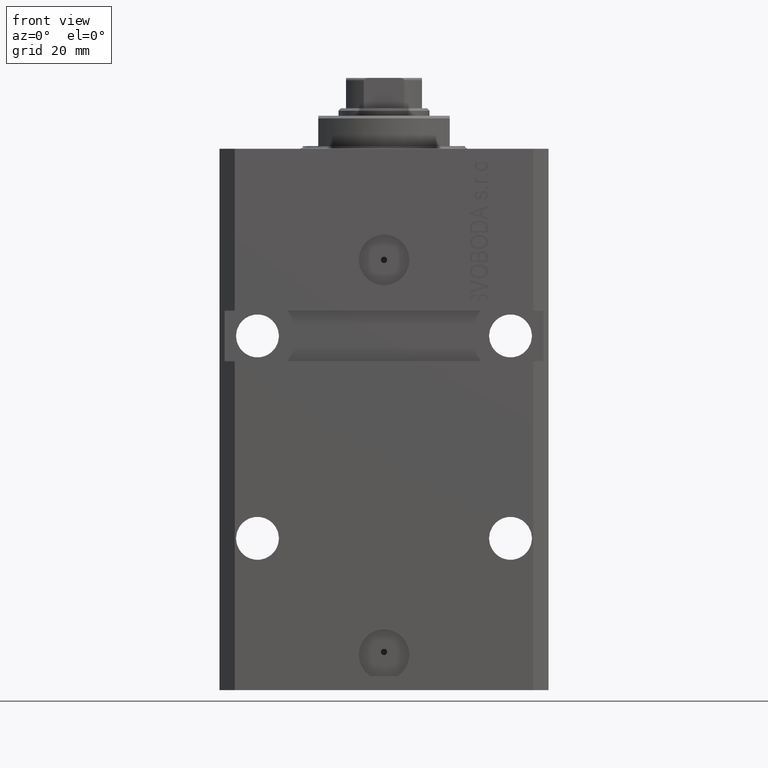
[diagram: clean part render]
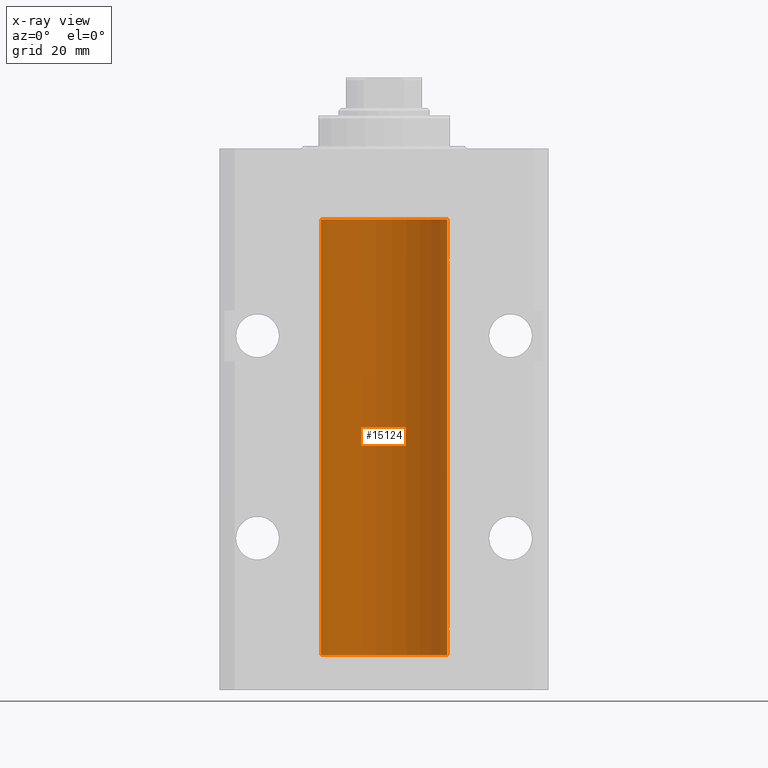
[diagram: x-ray — body ghosted, one internal face saturated and labeled with its STEP entity id]
A machine part, front view, then the same camera in x-ray: the body is ghosted and one INTERNAL B-rep face — a face not visible from any outside direction — is saturated and labeled: STEP entity #15124.
In plain terms, the highlighted cylindrical surface (partial cylindrical patch) has radius 12.5 mm, axis along (0, 0, 1).
Its self-contained STEP definition (entity closure, byte-faithful):
#108 = CARTESIAN_POINT ( 'NONE',  ( 12.48436522214846711, 0.6250000000078848039, -94.99999999999923261 ) ) ;
#158 = CARTESIAN_POINT ( 'NONE',  ( -12.49631005746706514, 0.3253680783018457756, -95.55856740465388555 ) ) ;
#183 = CARTESIAN_POINT ( 'NONE',  ( -12.50000000000000000, 1.530808498934191521E-15, -100.0999999999999943 ) ) ;
#340 = ORIENTED_EDGE ( 'NONE', *, *, #43353, .T. ) ;
#391 = CARTESIAN_POINT ( 'NONE',  ( -12.50000000000017941, 3.883381774819353300E-13, -95.62500000000359535 ) ) ;
#770 = CARTESIAN_POINT ( 'NONE',  ( 12.49625698805480667, 0.3151108292486967666, -22.54593695688170385 ) ) ;
#860 = CARTESIAN_POINT ( 'NONE',  ( -12.49422197749723829, 0.3843754434364257122, -94.50047099568094211 ) ) ;
#1090 = EDGE_CURVE ( 'NONE', #28588, #25165, #44133, .T. ) ;
#1183 = LINE ( 'NONE', #23003, #45506 ) ;
#2251 = CARTESIAN_POINT ( 'NONE',  ( 12.49999999999999112, 0.1631389616600879555, -21.37500000000019185 ) ) ;
#2462 = DIRECTION ( 'NONE',  ( -0.000000000000000000, -0.000000000000000000, 1.000000000000000000 ) ) ;
#2658 = CARTESIAN_POINT ( 'NONE',  ( -12.50000000000000000, 1.530808498934191521E-15, -100.0999999999999943 ) ) ;
#3132 = AXIS2_PLACEMENT_3D ( 'NONE', #5444, #12132, #11692 ) ;
#3618 = CARTESIAN_POINT ( 'NONE',  ( -12.49915784441387068, 0.1636601911727894876, -94.39126818989429069 ) ) ;
#3622 = CARTESIAN_POINT ( 'NONE',  ( 12.49012055744648997, 0.5002956126656082914, -94.61641710202405875 ) ) ;
#4410 = DIRECTION ( 'NONE',  ( 0.000000000000000000, 0.000000000000000000, 1.000000000000000000 ) ) ;
#4554 = LINE ( 'NONE', #22042, #8207 ) ;
#4780 = CARTESIAN_POINT ( 'NONE',  ( 12.49012055744648997, 0.5002956126655976332, -21.61641710202404454 ) ) ;
#5168 = VERTEX_POINT ( 'NONE', #25268 ) ;
#5444 = CARTESIAN_POINT ( 'NONE',  ( 0.000000000000000000, 0.000000000000000000, -100.0999999999999943 ) ) ;
#5829 = VECTOR ( 'NONE', #37147, 1000.000000000000000 ) ;
#5906 = CARTESIAN_POINT ( 'NONE',  ( -12.50000000000000000, 1.530808498934191521E-15, -100.0999999999999943 ) ) ;
#6539 = AXIS2_PLACEMENT_3D ( 'NONE', #33740, #19257, #29612 ) ;
#6620 = CARTESIAN_POINT ( 'NONE',  ( 12.50000000000017941, 3.868073689162038701E-13, -94.37499999999640465 ) ) ;
#6635 = VECTOR ( 'NONE', #7211, 1000.000000000000000 ) ;
#6776 = CARTESIAN_POINT ( 'NONE',  ( 12.50000000000000000, 0.000000000000000000, -100.0999999999999943 ) ) ;
#7211 = DIRECTION ( 'NONE',  ( -0.000000000000000000, -0.000000000000000000, 1.000000000000000000 ) ) ;
#7779 = CARTESIAN_POINT ( 'NONE',  ( 12.48810305280568222, 0.5461368461738448365, -21.68525466142676805 ) ) ;
#7816 = EDGE_LOOP ( 'NONE', ( #38718, #24294, #11854, #26804, #23109, #340, #17808, #21239, #41978, #33317, #17869, #42160, #27499, #22313 ) ) ;
#7886 = CARTESIAN_POINT ( 'NONE',  ( 12.48436522214846889, 0.6250000000078781426, -21.99999999999923261 ) ) ;
#8207 = VECTOR ( 'NONE', #8215, 1000.000000000000000 ) ;
#8215 = DIRECTION ( 'NONE',  ( -0.000000000000000000, -0.000000000000000000, 1.000000000000000000 ) ) ;
#8347 = VERTEX_POINT ( 'NONE', #35447 ) ;
#8799 = CARTESIAN_POINT ( 'NONE',  ( -12.50000000000000000, 1.530808498934191521E-15, -13.99999999999999822 ) ) ;
#8968 = CARTESIAN_POINT ( 'NONE',  ( -12.50000000000000000, -2.089494013101375120E-17, -21.37499999999999645 ) ) ;
#9120 = CYLINDRICAL_SURFACE ( 'NONE', #6539, 12.50000000000000000 ) ;
#9696 = VECTOR ( 'NONE', #2462, 1000.000000000000000 ) ;
#9799 = VERTEX_POINT ( 'NONE', #22507 ) ;
#9849 = CARTESIAN_POINT ( 'NONE',  ( 12.48520578595314845, 0.6087855079133740466, -94.83656717509346379 ) ) ;
#10077 = CARTESIAN_POINT ( 'NONE',  ( 12.49631206032076136, 0.3252904079142934779, -94.44139700214928723 ) ) ;
#10300 = CARTESIAN_POINT ( 'NONE',  ( 12.48810305280568222, 0.5461368461738485003, -94.68525466142676805 ) ) ;
#10751 = CARTESIAN_POINT ( 'NONE',  ( -12.50000000000000000, 0.08260426088727994276, -94.37499999999998579 ) ) ;
#10909 = CARTESIAN_POINT ( 'NONE',  ( -12.50000000000000000, 1.530808498934191521E-15, -100.0999999999999943 ) ) ;
#10986 = CARTESIAN_POINT ( 'NONE',  ( -12.48809959379011403, 0.5462151254764922026, -95.31461370481613926 ) ) ;
#11251 = CARTESIAN_POINT ( 'NONE',  ( 12.48436522214846889, 0.6250000000078781426, -21.99999999999923261 ) ) ;
#11594 = LINE ( 'NONE', #42400, #6635 ) ;
#11692 = DIRECTION ( 'NONE',  ( 1.000000000000000000, 0.000000000000000000, 0.000000000000000000 ) ) ;
#11854 = ORIENTED_EDGE ( 'NONE', *, *, #35568, .T. ) ;
#11985 = CARTESIAN_POINT ( 'NONE',  ( -12.48436376893640443, 0.6250290278979917513, -22.08132082824473486 ) ) ;
#12132 = DIRECTION ( 'NONE',  ( 0.000000000000000000, 0.000000000000000000, 1.000000000000000000 ) ) ;
#12422 = CARTESIAN_POINT ( 'NONE',  ( 12.50000000000017941, 3.868073689162038701E-13, -94.37499999999640465 ) ) ;
#12669 = CARTESIAN_POINT ( 'NONE',  ( -12.49011732893843529, 0.5003763274120274218, -22.38348111289287701 ) ) ;
#13119 = B_SPLINE_CURVE_WITH_KNOTS ( 'NONE', 3,
 ( #21111, #10751, #3618, #18120, #860, #32143, #39263, #17666, #25021, #10986, #28016, #158, #42707, #391 ),
 .UNSPECIFIED., .F., .F.,
 ( 4, 2, 2, 2, 2, 2, 4 ),
 ( 3.486178718436696769E-18, 0.0002442924852390829216, 0.0004885849704781623738, 0.0009771699409563507684, 0.001221462426195465403, 0.001465754911434580254, 0.001954339881912780900 ),
 .UNSPECIFIED. ) ;
#13325 = EDGE_CURVE ( 'NONE', #5168, #15850, #37303, .T. ) ;
#13720 = CARTESIAN_POINT ( 'NONE',  ( 12.49421963472024721, 0.3844519291903572555, -95.49947303647047647 ) ) ;
#14233 = DIRECTION ( 'NONE',  ( -0.000000000000000000, -0.000000000000000000, 1.000000000000000000 ) ) ;
#14632 = CARTESIAN_POINT ( 'NONE',  ( 12.48436522214885969, 0.6250000000001505462, -95.16312747540308692 ) ) ;
#14720 = CARTESIAN_POINT ( 'NONE',  ( -12.50000000000000000, -2.089494013101375120E-17, -21.37499999999999645 ) ) ;
#15034 = CARTESIAN_POINT ( 'NONE',  ( 12.48809900631782099, 0.5573988467445639694, -22.32640147935474317 ) ) ;
#15124 = ADVANCED_FACE ( 'NONE', ( #26396 ), #9120, .F. ) ;
#15850 = VERTEX_POINT ( 'NONE', #108 ) ;
#17666 = CARTESIAN_POINT ( 'NONE',  ( -12.48436376893640620, 0.6250290278979871994, -95.08132082824478459 ) ) ;
#17808 = ORIENTED_EDGE ( 'NONE', *, *, #43574, .T. ) ;
#17847 = CARTESIAN_POINT ( 'NONE',  ( 12.49915742890631876, 0.1636982395582385896, -95.60872397847028026 ) ) ;
#17869 = ORIENTED_EDGE ( 'NONE', *, *, #31133, .F. ) ;
#18030 = CARTESIAN_POINT ( 'NONE',  ( 12.50000000000000000, -1.470318446642941360E-15, -22.62500000000000000 ) ) ;
#18120 = CARTESIAN_POINT ( 'NONE',  ( -12.49625855304194033, 0.3150454781037993479, -94.45402800297488000 ) ) ;
#18674 = VERTEX_POINT ( 'NONE', #8799 ) ;
#19103 = DIRECTION ( 'NONE',  ( -0.000000000000000000, -0.000000000000000000, 1.000000000000000000 ) ) ;
#19112 = CARTESIAN_POINT ( 'NONE',  ( -12.48436813453758454, 0.6249418250771192618, -21.83668996798922635 ) ) ;
#19257 = DIRECTION ( 'NONE',  ( -0.000000000000000000, -0.000000000000000000, 1.000000000000000000 ) ) ;
#21111 = CARTESIAN_POINT ( 'NONE',  ( -12.50000000000000000, -1.522152011595579853E-14, -94.37500000000000000 ) ) ;
#21239 = ORIENTED_EDGE ( 'NONE', *, *, #1090, .T. ) ;
#21249 = LINE ( 'NONE', #5906, #9696 ) ;
#21481 = CARTESIAN_POINT ( 'NONE',  ( 12.48436522214885969, 0.6250000000001448841, -22.16312747540307271 ) ) ;
#21834 = CARTESIAN_POINT ( 'NONE',  ( 12.49631206032075958, 0.3252904079142808214, -21.44139700214925526 ) ) ;
#22043 = EDGE_CURVE ( 'NONE', #15850, #34777, #45403, .T. ) ;
#22042 = CARTESIAN_POINT ( 'NONE',  ( 12.50000000000000000, 0.000000000000000000, -100.0999999999999943 ) ) ;
#22313 = ORIENTED_EDGE ( 'NONE', *, *, #39692, .T. ) ;
#22340 = CARTESIAN_POINT ( 'NONE',  ( -12.49915784441386890, 0.1636601911727947889, -21.39126818989430490 ) ) ;
#22507 = CARTESIAN_POINT ( 'NONE',  ( -12.50000000000017941, 3.883381774819353300E-13, -95.62500000000359535 ) ) ;
#22944 = CARTESIAN_POINT ( 'NONE',  ( 12.50000000000017941, 3.868073565084946818E-13, -21.37499999999641176 ) ) ;
#23003 = CARTESIAN_POINT ( 'NONE',  ( 12.50000000000000000, 0.000000000000000000, -100.0999999999999943 ) ) ;
#23011 = CARTESIAN_POINT ( 'NONE',  ( -12.49422197749724006, 0.3843754434364375916, -21.50047099568095277 ) ) ;
#23109 = ORIENTED_EDGE ( 'NONE', *, *, #22043, .T. ) ;
#23962 = CIRCLE ( 'NONE', #32790, 12.50000000000000000 ) ;
#24070 = CARTESIAN_POINT ( 'NONE',  ( 12.48809900631782099, 0.5573988467445673001, -95.32640147935475738 ) ) ;
#24115 = CARTESIAN_POINT ( 'NONE',  ( 12.49999999999999822, 0.1631389616600901760, -94.37500000000024158 ) ) ;
#24294 = ORIENTED_EDGE ( 'NONE', *, *, #44302, .F. ) ;
#24568 = EDGE_CURVE ( 'NONE', #27970, #18674, #23962, .T. ) ;
#24932 = CARTESIAN_POINT ( 'NONE',  ( 12.49915742890631876, 0.1636982395582437522, -22.60872397847025539 ) ) ;
#25021 = CARTESIAN_POINT ( 'NONE',  ( -12.48520330846397997, 0.6088355886774070580, -95.16325431852561678 ) ) ;
#25165 = VERTEX_POINT ( 'NONE', #30211 ) ;
#25268 = CARTESIAN_POINT ( 'NONE',  ( 12.50000000000000000, -1.836039810331332019E-15, -95.62500000000000000 ) ) ;
#25286 = CARTESIAN_POINT ( 'NONE',  ( 12.48436522214888100, 0.6249999999996762590, -21.91847339462350774 ) ) ;
#25808 = CARTESIAN_POINT ( 'NONE',  ( -12.50000000000017941, 3.883381646606358354E-13, -22.62500000000358824 ) ) ;
#26396 = FACE_OUTER_BOUND ( 'NONE', #7816, .T. ) ;
#26510 = CARTESIAN_POINT ( 'NONE',  ( -12.50000000000017941, 3.883381646606358354E-13, -22.62500000000358824 ) ) ;
#26790 = VERTEX_POINT ( 'NONE', #26510 ) ;
#26804 = ORIENTED_EDGE ( 'NONE', *, *, #13325, .T. ) ;
#27053 = LINE ( 'NONE', #2658, #5829 ) ;
#27499 = ORIENTED_EDGE ( 'NONE', *, *, #43498, .F. ) ;
#27970 = VERTEX_POINT ( 'NONE', #34030 ) ;
#28009 = CARTESIAN_POINT ( 'NONE',  ( 12.50000000000000000, -1.470318446642941360E-15, -22.62500000000000000 ) ) ;
#28016 = CARTESIAN_POINT ( 'NONE',  ( -12.49011732893843529, 0.5003763274120199833, -95.38348111289285214 ) ) ;
#28588 = VERTEX_POINT ( 'NONE', #36457 ) ;
#28711 = VERTEX_POINT ( 'NONE', #10909 ) ;
#29251 = CARTESIAN_POINT ( 'NONE',  ( -12.48810268015257563, 0.5573155909661349217, -21.67347410093867666 ) ) ;
#29469 = DIRECTION ( 'NONE',  ( 1.000000000000000000, 0.000000000000000000, 0.000000000000000000 ) ) ;
#29612 = DIRECTION ( 'NONE',  ( 1.000000000000000000, 0.000000000000000000, 0.000000000000000000 ) ) ;
#29686 = CARTESIAN_POINT ( 'NONE',  ( -12.48809959379011403, 0.5462151254764975317, -22.31461370481611795 ) ) ;
#30150 = CARTESIAN_POINT ( 'NONE',  ( -12.50000000000000000, 0.08260426088729219685, -21.37500000000000000 ) ) ;
#30211 = CARTESIAN_POINT ( 'NONE',  ( 12.50000000000017941, 3.868073565084946818E-13, -21.37499999999641176 ) ) ;
#30989 = B_SPLINE_CURVE_WITH_KNOTS ( 'NONE', 3,
 ( #18030, #36393, #24932, #770, #39409, #15034, #21481, #7886 ),
 .UNSPECIFIED., .F., .F.,
 ( 4, 2, 2, 4 ),
 ( 2.576359803311334014E-18, 0.0002443481056285645150, 0.0004886962112571264279, 0.0009773924225142506875 ),
 .UNSPECIFIED. ) ;
#31133 = EDGE_CURVE ( 'NONE', #38688, #18674, #34696, .T. ) ;
#32143 = CARTESIAN_POINT ( 'NONE',  ( -12.48810268015257741, 0.5573155909661239304, -94.67347410093871929 ) ) ;
#32691 = CARTESIAN_POINT ( 'NONE',  ( 0.000000000000000000, 0.000000000000000000, -13.99999999999999822 ) ) ;
#32790 = AXIS2_PLACEMENT_3D ( 'NONE', #32691, #4410, #29469 ) ;
#33081 = EDGE_CURVE ( 'NONE', #28711, #9799, #27053, .T. ) ;
#33317 = ORIENTED_EDGE ( 'NONE', *, *, #24568, .T. ) ;
#33740 = CARTESIAN_POINT ( 'NONE',  ( 0.000000000000000000, 0.000000000000000000, -100.0999999999999943 ) ) ;
#33973 = VERTEX_POINT ( 'NONE', #6776 ) ;
#34030 = CARTESIAN_POINT ( 'NONE',  ( 12.50000000000000000, 0.000000000000000000, -13.99999999999999822 ) ) ;
#34696 = LINE ( 'NONE', #183, #41733 ) ;
#34777 = VERTEX_POINT ( 'NONE', #12422 ) ;
#35126 = CARTESIAN_POINT ( 'NONE',  ( 12.48436522214888100, 0.6249999999996834754, -94.91847339462351840 ) ) ;
#35447 = CARTESIAN_POINT ( 'NONE',  ( -12.50000000000000000, -1.522152011595579853E-14, -94.37500000000000000 ) ) ;
#35533 = CARTESIAN_POINT ( 'NONE',  ( 12.48436522214846711, 0.6250000000078848039, -94.99999999999923261 ) ) ;
#35568 = EDGE_CURVE ( 'NONE', #33973, #5168, #11594, .T. ) ;
#36393 = CARTESIAN_POINT ( 'NONE',  ( 12.49999999999999822, 0.08262306818362555316, -22.62499999999997513 ) ) ;
#36457 = CARTESIAN_POINT ( 'NONE',  ( 12.48436522214846889, 0.6250000000078781426, -21.99999999999923261 ) ) ;
#36801 = B_SPLINE_CURVE_WITH_KNOTS ( 'NONE', 3,
 ( #8968, #30150, #22340, #44162, #23011, #29251, #19112, #11985, #43264, #29686, #12669, #43696, #39596, #25808 ),
 .UNSPECIFIED., .F., .F.,
 ( 4, 2, 2, 2, 2, 2, 4 ),
 ( 2.030551168097110502E-20, 0.0002442924852390969078, 0.0004885849704781938157, 0.0009771699409563880650, 0.001221462426195485135, 0.001465754911434582423, 0.001954339881912776130 ),
 .UNSPECIFIED. ) ;
#37147 = DIRECTION ( 'NONE',  ( -0.000000000000000000, -0.000000000000000000, 1.000000000000000000 ) ) ;
#37303 = B_SPLINE_CURVE_WITH_KNOTS ( 'NONE', 3,
 ( #38539, #38765, #17847, #38316, #13720, #24070, #14632, #35533 ),
 .UNSPECIFIED., .F., .F.,
 ( 4, 2, 2, 4 ),
 ( 1.784246692340212412E-18, 0.0002443481056285665750, 0.0004886962112571313068, 0.0009773924225142606621 ),
 .UNSPECIFIED. ) ;
#37672 = EDGE_CURVE ( 'NONE', #25165, #27970, #1183, .T. ) ;
#38316 = CARTESIAN_POINT ( 'NONE',  ( 12.49625698805481022, 0.3151108292486944906, -95.54593695688171806 ) ) ;
#38385 = EDGE_CURVE ( 'NONE', #38688, #26790, #36801, .T. ) ;
#38539 = CARTESIAN_POINT ( 'NONE',  ( 12.50000000000000000, -1.836039810331332019E-15, -95.62500000000000000 ) ) ;
#38688 = VERTEX_POINT ( 'NONE', #14720 ) ;
#38718 = ORIENTED_EDGE ( 'NONE', *, *, #33081, .F. ) ;
#38765 = CARTESIAN_POINT ( 'NONE',  ( 12.49999999999999822, 0.08262306818362624705, -95.62499999999998579 ) ) ;
#38818 = VERTEX_POINT ( 'NONE', #28009 ) ;
#39112 = CIRCLE ( 'NONE', #3132, 12.50000000000000000 ) ;
#39263 = CARTESIAN_POINT ( 'NONE',  ( -12.48436813453758631, 0.6249418250771134886, -94.83668996798924411 ) ) ;
#39302 = CARTESIAN_POINT ( 'NONE',  ( 12.48520578595314845, 0.6087855079133684955, -21.83656717509346024 ) ) ;
#39409 = CARTESIAN_POINT ( 'NONE',  ( 12.49421963472024366, 0.3844519291903583103, -22.49947303647044805 ) ) ;
#39596 = CARTESIAN_POINT ( 'NONE',  ( -12.49999999999999289, 0.1631761135151241215, -22.62499999999984013 ) ) ;
#39692 = EDGE_CURVE ( 'NONE', #8347, #9799, #13119, .T. ) ;
#41352 = CARTESIAN_POINT ( 'NONE',  ( 12.48436522214846711, 0.6250000000078848039, -94.99999999999923261 ) ) ;
#41733 = VECTOR ( 'NONE', #14233, 1000.000000000000000 ) ;
#41978 = ORIENTED_EDGE ( 'NONE', *, *, #37672, .T. ) ;
#42160 = ORIENTED_EDGE ( 'NONE', *, *, #38385, .T. ) ;
#42400 = CARTESIAN_POINT ( 'NONE',  ( 12.50000000000000000, 0.000000000000000000, -100.0999999999999943 ) ) ;
#42707 = CARTESIAN_POINT ( 'NONE',  ( -12.49999999999999112, 0.1631761135151224562, -95.62499999999980105 ) ) ;
#43264 = CARTESIAN_POINT ( 'NONE',  ( -12.48520330846397819, 0.6088355886774127201, -22.16325431852561323 ) ) ;
#43353 = EDGE_CURVE ( 'NONE', #34777, #38818, #4554, .T. ) ;
#43498 = EDGE_CURVE ( 'NONE', #8347, #26790, #21249, .T. ) ;
#43574 = EDGE_CURVE ( 'NONE', #38818, #28588, #30989, .T. ) ;
#43696 = CARTESIAN_POINT ( 'NONE',  ( -12.49631005746706336, 0.3253680783018528255, -22.55856740465392463 ) ) ;
#44133 = B_SPLINE_CURVE_WITH_KNOTS ( 'NONE', 3,
 ( #11251, #25286, #39302, #7779, #4780, #21834, #2251, #22944 ),
 .UNSPECIFIED., .F., .F.,
 ( 4, 2, 2, 4 ),
 ( 0.0009773924225142506875, 0.001221629287363794770, 0.001465866152213338852, 0.001954339881912434389 ),
 .UNSPECIFIED. ) ;
#44162 = CARTESIAN_POINT ( 'NONE',  ( -12.49625855304193678, 0.3150454781038042329, -21.45402800297484802 ) ) ;
#44302 = EDGE_CURVE ( 'NONE', #33973, #28711, #39112, .T. ) ;
#45403 = B_SPLINE_CURVE_WITH_KNOTS ( 'NONE', 3,
 ( #41352, #35126, #9849, #10300, #3622, #10077, #24115, #6620 ),
 .UNSPECIFIED., .F., .F.,
 ( 4, 2, 2, 4 ),
 ( 0.0009773924225142606621, 0.001221629287363811033, 0.001465866152213361404, 0.001954339881912461711 ),
 .UNSPECIFIED. ) ;
#45506 = VECTOR ( 'NONE', #19103, 1000.000000000000000 ) ;